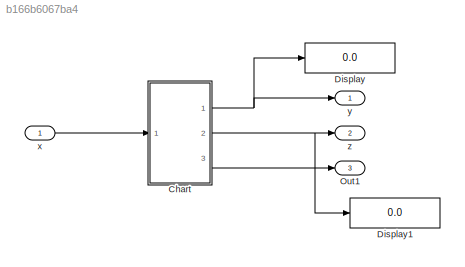
MODEL slx_b166b6067ba4
KIND model
CONFIG AbsTol = auto
CONFIG EnableMultiTasking = on
CONFIG FixedStep = 0.200000
CONFIG MaxStep = auto
CONFIG MinStep = auto
CONFIG RelTol = 1e-3
CONFIG SampleTimeConstraint = Unconstrained
CONFIG Solver = FixedStepDiscrete
CONFIG SolverName = FixedStepDiscrete
CONFIG StartTime = 0.0
CONFIG StopTime = 10.0
WORKSPACE source: MAT-file member
WORKSPACE already_pp = 1
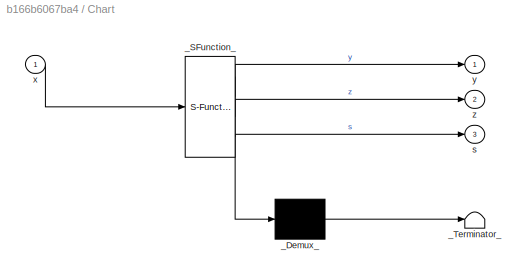
BLOCK [SubSystem] Chart
  ErrorFcn = Stateflow.Translate.translate
  PermitHierarchicalResolution = ExplicitOnly
  Ports = [1, 3]
  RequestExecContextInheritance = off
  SFBlockType = Chart
  TreatAsAtomicUnit = on
  Variant = off
BLOCK [Demux] Chart/_Demux_
  Outputs = 1
  Ports = [1, 1]
BLOCK [S-Function] Chart/_SFunction_
  EnableBusSupport = on
  FunctionName = sf_sfun
  PortCounts = [1 4]
  Ports = [1, 4]
  SFcnIsStateOwnerBlock = off
  SFunctionDeploymentMode = off
  Tag = Stateflow S-Function Junctions1_integers 1
BLOCK [Terminator] Chart/_Terminator_
BLOCK [Outport] Chart/s
  IconDisplay = Port number
  Port = 3
BLOCK [Inport] Chart/x
  IconDisplay = Port number
BLOCK [Outport] Chart/y
  IconDisplay = Port number
BLOCK [Outport] Chart/z
  IconDisplay = Port number
  Port = 2
BLOCK [Display] Display
  Decimation = 1
  Ports = [1]
BLOCK [Display] Display1
  Decimation = 1
  Ports = [1]
BLOCK [Outport] Out1
  IconDisplay = Port number
  Port = 3
BLOCK [Inport] x
  IconDisplay = Port number
  OutDataTypeStr = uint32
BLOCK [Outport] y
  IconDisplay = Port number
BLOCK [Outport] z
  IconDisplay = Port number
  Port = 2
NET Chart:1 -> Display:1, y:1
NET Chart:2 -> Display1:1, z:1
LINE Chart:3 -> Out1:1
LINE x:1 -> Chart:1
note: NET lines group one-source signal fan-out (src -> all destinations, sorted); 1:1 wires keep LINE
CHART Chart states=3 transitions=6
  STATE_LABEL 'A\nex : y=y/2;\nen: s = 1;'
  STATE_LABEL 'C\nex: y = y+2;\nen: s = 3;'
  STATE_LABEL 'B\nex: y = mod(y,2);\nen: s = 2;'
